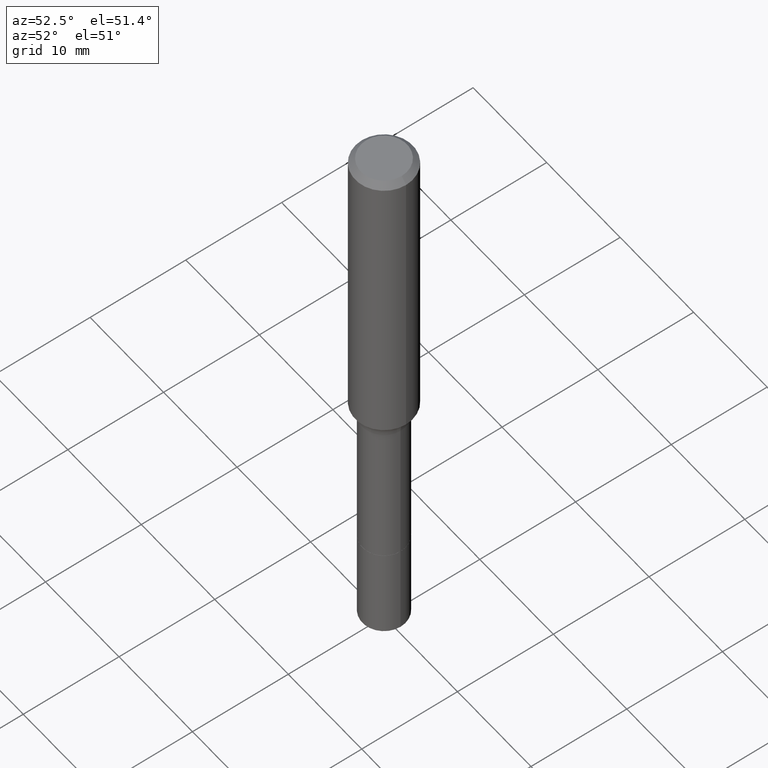
[diagram: clean part render]
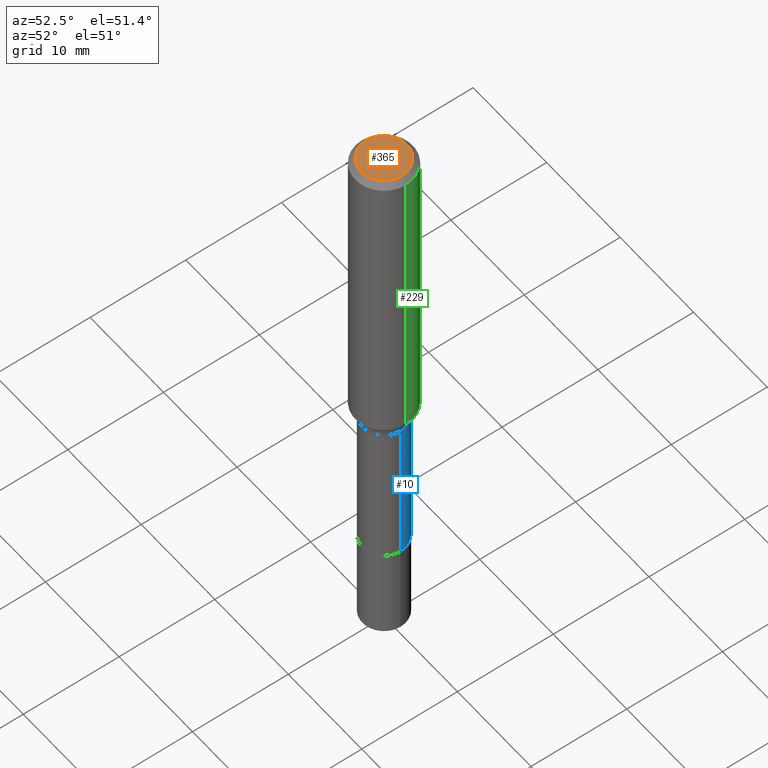
[diagram: same view with three faces highlighted in distinct colors, each labeled with its STEP entity id]
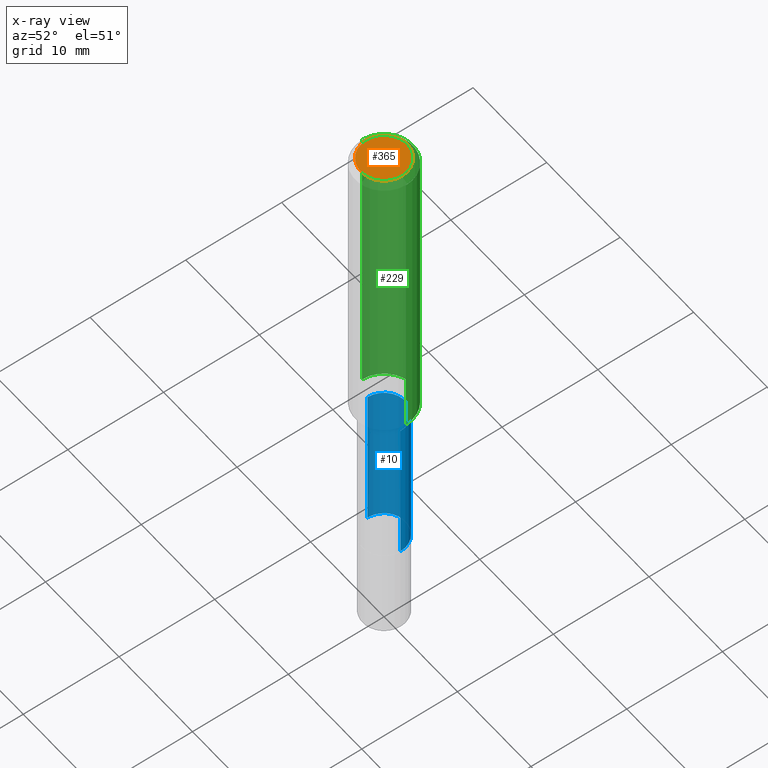
[diagram: x-ray of the same camera — body ghosted, the three highlighted faces saturated]
A machine part, auxiliary view with three faces highlighted in distinct colors.
The next image is the same camera in x-ray (body ghosted, the three faces saturated) — at least one of them is partly hidden behind the body in this view.
Their STEP definitions:

[orange] entity #365 — the highlighted planar face has unit normal (0, -0, -1).
#5 = DIRECTION ( 'NONE',  ( 2.438088387897960049E-29, -3.491481338843145188E-15, -1.000000000000000000 ) ) ;
#11 = AXIS2_PLACEMENT_3D ( 'NONE', #398, #5, #199 ) ;
#47 = CIRCLE ( 'NONE', #488, 0.09447999999999998066 ) ;
#56 = CIRCLE ( 'NONE', #344, 0.09447999999999998066 ) ;
#60 = EDGE_CURVE ( 'NONE', #208, #354, #47, .T. ) ;
#102 = DIRECTION ( 'NONE',  ( -2.445468806185136597E-29, 3.491481338843145583E-15, 1.000000000000000000 ) ) ;
#124 = CARTESIAN_POINT ( 'NONE',  ( 0.09447999999999998066, -7.704367267948738690E-16, -3.085620075131172158E-17 ) ) ;
#163 = FACE_OUTER_BOUND ( 'NONE', #314, .T. ) ;
#172 = CARTESIAN_POINT ( 'NONE',  ( 7.545787641473140628E-46, -1.077338491108201769E-31, -3.085620075131671975E-17 ) ) ;
#189 = CARTESIAN_POINT ( 'NONE',  ( -0.09447999999999998066, 7.009847083995354710E-16, -3.085620075132147757E-17 ) ) ;
#199 = DIRECTION ( 'NONE',  ( -1.000000000000000000, 6.982962677686265922E-15, -4.876176775795935793E-29 ) ) ;
#208 = VERTEX_POINT ( 'NONE', #189 ) ;
#216 = DIRECTION ( 'NONE',  ( -2.445468806185136597E-29, 3.491481338843145583E-15, 1.000000000000000000 ) ) ;
#233 = PLANE ( 'NONE',  #11 ) ;
#289 = CARTESIAN_POINT ( 'NONE',  ( 7.545787641473140628E-46, -1.077338491108201769E-31, -3.085620075131671975E-17 ) ) ;
#314 = EDGE_LOOP ( 'NONE', ( #497, #456 ) ) ;
#344 = AXIS2_PLACEMENT_3D ( 'NONE', #289, #216, #426 ) ;
#354 = VERTEX_POINT ( 'NONE', #124 ) ;
#365 = ADVANCED_FACE ( 'NONE', ( #163 ), #233, .F. ) ;
#398 = CARTESIAN_POINT ( 'NONE',  ( 3.772893820736570314E-46, -5.386692455541008845E-32, -1.542810037565835988E-17 ) ) ;
#414 = EDGE_CURVE ( 'NONE', #354, #208, #56, .T. ) ;
#426 = DIRECTION ( 'NONE',  ( 1.000000000000000000, -6.982962677686267499E-15, 4.875432709231658792E-29 ) ) ;
#456 = ORIENTED_EDGE ( 'NONE', *, *, #414, .T. ) ;
#488 = AXIS2_PLACEMENT_3D ( 'NONE', #172, #102, #504 ) ;
#497 = ORIENTED_EDGE ( 'NONE', *, *, #60, .T. ) ;
#504 = DIRECTION ( 'NONE',  ( 1.000000000000000000, -6.982962677686267499E-15, 4.875432709231658792E-29 ) ) ;

[blue] entity #10 — the highlighted cylindrical surface (edge-blend (fillet) strip) has radius 2.2504 mm, axis along (-0, 0, 1).
#10 = ADVANCED_FACE ( 'NONE', ( #299 ), #511, .T. ) ;
#15 = CARTESIAN_POINT ( 'NONE',  ( 0.08859999999999994269, -6.186904932430028543E-16, 4.320292623355196663E-30 ) ) ;
#20 = CIRCLE ( 'NONE', #435, 0.08859999999999999820 ) ;
#22 = DIRECTION ( 'NONE',  ( -2.445468806185136877E-29, 3.491481338843145188E-15, 1.000000000000000000 ) ) ;
#32 = CARTESIAN_POINT ( 'NONE',  ( 4.811948969930493801E-29, -6.870187830441658090E-15, -1.967700000000000227 ) ) ;
#35 = EDGE_CURVE ( 'NONE', #245, #253, #180, .T. ) ;
#48 = DIRECTION ( 'NONE',  ( -2.445468806185136597E-29, 3.491481338843145583E-15, 1.000000000000000000 ) ) ;
#62 = DIRECTION ( 'NONE',  ( 1.000000000000000000, -6.982962677686266711E-15, 4.876176775795936353E-29 ) ) ;
#70 = DIRECTION ( 'NONE',  ( 1.000000000000000000, -6.982962677686269077E-15, 0.000000000000000000 ) ) ;
#104 = VECTOR ( 'NONE', #22, 39.37007874015748143 ) ;
#106 = DIRECTION ( 'NONE',  ( -2.445468806185136597E-29, 3.491481338843145583E-15, 1.000000000000000000 ) ) ;
#138 = VECTOR ( 'NONE', #271, 39.37007874015748143 ) ;
#146 = AXIS2_PLACEMENT_3D ( 'NONE', #361, #48, #353 ) ;
#148 = CARTESIAN_POINT ( 'NONE',  ( -0.08859999999999991493, -5.141703215157328173E-15, -1.338200000000000056 ) ) ;
#166 = VERTEX_POINT ( 'NONE', #434 ) ;
#171 = EDGE_CURVE ( 'NONE', #166, #245, #20, .T. ) ;
#180 = LINE ( 'NONE', #337, #104 ) ;
#207 = LINE ( 'NONE', #15, #138 ) ;
#211 = ORIENTED_EDGE ( 'NONE', *, *, #352, .F. ) ;
#228 = DIRECTION ( 'NONE',  ( -2.445468806185136597E-29, 3.491481338843145583E-15, 1.000000000000000000 ) ) ;
#245 = VERTEX_POINT ( 'NONE', #431 ) ;
#253 = VERTEX_POINT ( 'NONE', #148 ) ;
#271 = DIRECTION ( 'NONE',  ( -2.445468806185136877E-29, 3.491481338843145188E-15, 1.000000000000000000 ) ) ;
#299 = FACE_OUTER_BOUND ( 'NONE', #394, .T. ) ;
#322 = EDGE_CURVE ( 'NONE', #454, #253, #386, .T. ) ;
#337 = CARTESIAN_POINT ( 'NONE',  ( -0.08859999999999994269, 6.295408638834483575E-16, -4.358176489965843464E-30 ) ) ;
#352 = EDGE_CURVE ( 'NONE', #166, #454, #207, .T. ) ;
#353 = DIRECTION ( 'NONE',  ( 1.000000000000000000, -6.982962677686264344E-15, 0.000000000000000000 ) ) ;
#357 = ORIENTED_EDGE ( 'NONE', *, *, #171, .T. ) ;
#361 = CARTESIAN_POINT ( 'NONE',  ( 3.272526356436949336E-29, -4.672300327639896745E-15, -1.338200000000000056 ) ) ;
#370 = CARTESIAN_POINT ( 'NONE',  ( 0.08859999999999991493, -5.290990820882899698E-15, -1.338200000000000056 ) ) ;
#374 = ORIENTED_EDGE ( 'NONE', *, *, #322, .F. ) ;
#386 = CIRCLE ( 'NONE', #146, 0.08859999999999991493 ) ;
#394 = EDGE_LOOP ( 'NONE', ( #357, #400, #374, #211 ) ) ;
#400 = ORIENTED_EDGE ( 'NONE', *, *, #35, .T. ) ;
#431 = CARTESIAN_POINT ( 'NONE',  ( -0.08859999999999999820, -5.141703215157327384E-15, -1.967700000000000227 ) ) ;
#434 = CARTESIAN_POINT ( 'NONE',  ( 0.08859999999999999820, -7.488878323684661832E-15, -1.967700000000000227 ) ) ;
#435 = AXIS2_PLACEMENT_3D ( 'NONE', #32, #228, #70 ) ;
#454 = VERTEX_POINT ( 'NONE', #370 ) ;
#461 = CARTESIAN_POINT ( 'NONE',  ( 0.000000000000000000, 0.000000000000000000, 0.000000000000000000 ) ) ;
#484 = AXIS2_PLACEMENT_3D ( 'NONE', #461, #106, #62 ) ;
#511 = CYLINDRICAL_SURFACE ( 'NONE', #484, 0.08859999999999994269 ) ;

[green] entity #229 — the highlighted cylindrical surface (edge-blend (fillet) strip) has radius 2.9997 mm, axis along (-0, 0, 1).
#4 = CARTESIAN_POINT ( 'NONE',  ( 0.1180999999999999966, -9.071566814582237199E-16, -0.02362000000000014435 ) ) ;
#27 = ORIENTED_EDGE ( 'NONE', *, *, #202, .T. ) ;
#33 = CARTESIAN_POINT ( 'NONE',  ( 3.118100589234994033E-29, -4.451821259144535962E-15, -1.275052285005076280 ) ) ;
#36 = CYLINDRICAL_SURFACE ( 'NONE', #128, 0.1181000000000000660 ) ;
#42 = DIRECTION ( 'NONE',  ( 1.000000000000000000, -6.982962677686266711E-15, 0.000000000000000000 ) ) ;
#46 = EDGE_LOOP ( 'NONE', ( #27, #132, #286, #168 ) ) ;
#80 = LINE ( 'NONE', #167, #272 ) ;
#111 = CIRCLE ( 'NONE', #254, 0.1181000000000001493 ) ;
#114 = CARTESIAN_POINT ( 'NONE',  ( -0.1180999999999999966, -1.427994053251326329E-15, -0.02362000000000014435 ) ) ;
#117 = EDGE_CURVE ( 'NONE', #281, #240, #304, .T. ) ;
#126 = DIRECTION ( 'NONE',  ( -2.445468806185136597E-29, 3.491481338843145583E-15, 1.000000000000000000 ) ) ;
#127 = VERTEX_POINT ( 'NONE', #154 ) ;
#128 = AXIS2_PLACEMENT_3D ( 'NONE', #346, #262, #306 ) ;
#132 = ORIENTED_EDGE ( 'NONE', *, *, #117, .T. ) ;
#140 = VERTEX_POINT ( 'NONE', #4 ) ;
#154 = CARTESIAN_POINT ( 'NONE',  ( 0.1181000000000001493, -5.276509151379284224E-15, -1.275052285005076280 ) ) ;
#167 = CARTESIAN_POINT ( 'NONE',  ( 0.1181000000000000660, -8.246878922347485584E-16, 5.758764772215003944E-30 ) ) ;
#168 = ORIENTED_EDGE ( 'NONE', *, *, #293, .F. ) ;
#184 = FACE_OUTER_BOUND ( 'NONE', #46, .T. ) ;
#202 = EDGE_CURVE ( 'NONE', #127, #281, #111, .T. ) ;
#212 = VECTOR ( 'NONE', #475, 39.37007874015748143 ) ;
#229 = ADVANCED_FACE ( 'NONE', ( #184 ), #36, .T. ) ;
#230 = DIRECTION ( 'NONE',  ( -2.445468806185136597E-29, 3.491481338843145583E-15, 1.000000000000000000 ) ) ;
#240 = VERTEX_POINT ( 'NONE', #114 ) ;
#254 = AXIS2_PLACEMENT_3D ( 'NONE', #33, #230, #351 ) ;
#262 = DIRECTION ( 'NONE',  ( -2.445468806185136597E-29, 3.491481338843145583E-15, 1.000000000000000000 ) ) ;
#272 = VECTOR ( 'NONE', #451, 39.37007874015748143 ) ;
#278 = CARTESIAN_POINT ( 'NONE',  ( 5.776197320209328408E-31, -8.246878922347560526E-17, -0.02362000000000014435 ) ) ;
#280 = CARTESIAN_POINT ( 'NONE',  ( -0.1181000000000001493, -3.612670288211856187E-15, -1.275052285005076280 ) ) ;
#281 = VERTEX_POINT ( 'NONE', #280 ) ;
#284 = EDGE_CURVE ( 'NONE', #140, #240, #378, .T. ) ;
#286 = ORIENTED_EDGE ( 'NONE', *, *, #284, .F. ) ;
#292 = AXIS2_PLACEMENT_3D ( 'NONE', #278, #126, #42 ) ;
#293 = EDGE_CURVE ( 'NONE', #127, #140, #80, .T. ) ;
#304 = LINE ( 'NONE', #483, #212 ) ;
#306 = DIRECTION ( 'NONE',  ( 1.000000000000000000, -6.982962677686266711E-15, 4.876176775795936353E-29 ) ) ;
#346 = CARTESIAN_POINT ( 'NONE',  ( 0.000000000000000000, 0.000000000000000000, 0.000000000000000000 ) ) ;
#351 = DIRECTION ( 'NONE',  ( 1.000000000000000000, -6.982962677686264344E-15, 0.000000000000000000 ) ) ;
#378 = CIRCLE ( 'NONE', #292, 0.1180999999999999966 ) ;
#451 = DIRECTION ( 'NONE',  ( -2.445468806185136877E-29, 3.491481338843145188E-15, 1.000000000000000000 ) ) ;
#475 = DIRECTION ( 'NONE',  ( -2.445468806185136877E-29, 3.491481338843145188E-15, 1.000000000000000000 ) ) ;
#483 = CARTESIAN_POINT ( 'NONE',  ( -0.1181000000000000660, 8.391509709326787887E-16, -5.809262341591047287E-30 ) ) ;